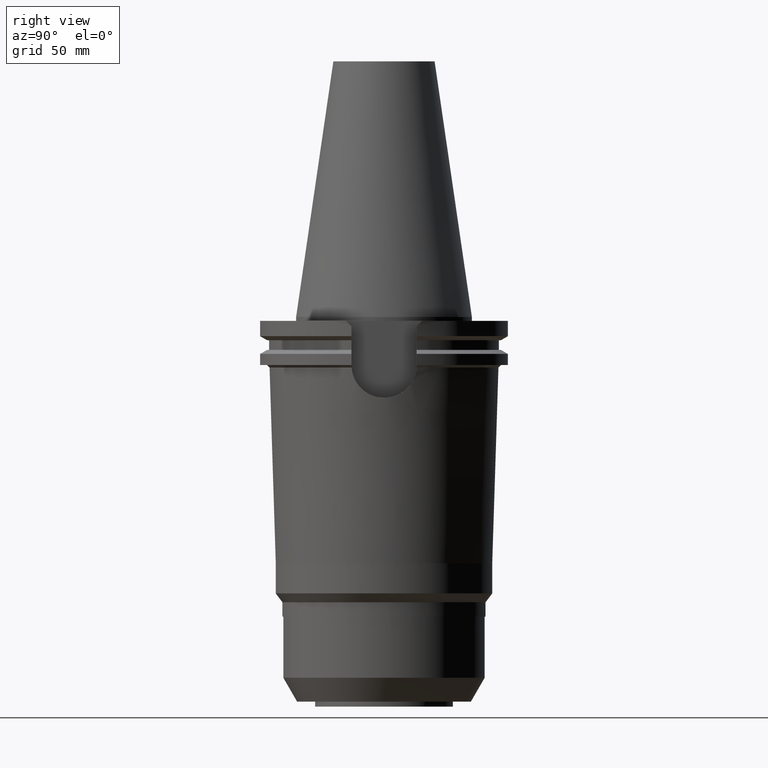
[diagram: clean part render]
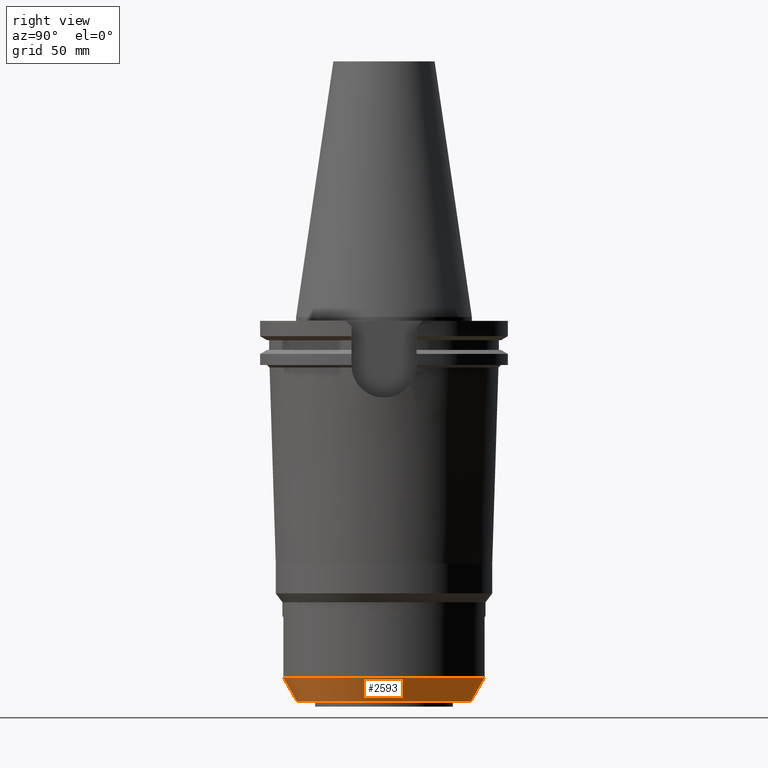
[diagram: same view with one face highlighted and labeled with its STEP entity id]
A machine part, right view. The second image highlights one B-rep face of the part: STEP entity #2593.
In plain terms, the highlighted conical surface has half-angle 30 deg.
Its self-contained STEP definition (entity closure, byte-faithful):
#1198=DIRECTION('',(0.E0,-5.E-1,-8.660254037845E-1));
#1199=VECTOR('',#1198,1.096965511460E1);
#1200=CARTESIAN_POINT('',(0.E0,4.E1,-1.433E2));
#1201=LINE('',#1200,#1199);
#1205=CARTESIAN_POINT('',(0.E0,0.E0,-1.433E2));
#1206=DIRECTION('',(0.E0,0.E0,1.E0));
#1207=DIRECTION('',(0.E0,-1.E0,0.E0));
#1208=AXIS2_PLACEMENT_3D('',#1205,#1206,#1207);
#1221=DIRECTION('',(0.E0,5.E-1,-8.660254037845E-1));
#1222=VECTOR('',#1221,1.096965511460E1);
#1223=CARTESIAN_POINT('',(0.E0,-4.E1,-1.433E2));
#1224=LINE('',#1223,#1222);
#1228=CARTESIAN_POINT('',(0.E0,0.E0,-1.528E2));
#1229=DIRECTION('',(0.E0,0.E0,1.E0));
#1230=DIRECTION('',(0.E0,-1.E0,0.E0));
#1231=AXIS2_PLACEMENT_3D('',#1228,#1229,#1230);
#1536=CARTESIAN_POINT('',(0.E0,-3.451517244270E1,-1.528E2));
#1537=CARTESIAN_POINT('',(0.E0,3.451517244270E1,-1.528E2));
#1538=VERTEX_POINT('',#1536);
#1539=VERTEX_POINT('',#1537);
#1540=CARTESIAN_POINT('',(0.E0,4.E1,-1.433E2));
#1541=VERTEX_POINT('',#1540);
#1542=CARTESIAN_POINT('',(0.E0,-4.E1,-1.433E2));
#1543=VERTEX_POINT('',#1542);
#2579=CARTESIAN_POINT('',(0.E0,0.E0,-1.4805E2));
#2580=DIRECTION('',(0.E0,0.E0,1.E0));
#2581=DIRECTION('',(0.E0,1.E0,0.E0));
#2582=AXIS2_PLACEMENT_3D('',#2579,#2580,#2581);
#2583=CONICAL_SURFACE('',#2582,3.725758622135E1,3.E1);
#2585=ORIENTED_EDGE('',*,*,#2584,.T.);
#2587=ORIENTED_EDGE('',*,*,#2586,.F.);
#2589=ORIENTED_EDGE('',*,*,#2588,.F.);
#2590=ORIENTED_EDGE('',*,*,#2572,.T.);
#2591=EDGE_LOOP('',(#2585,#2587,#2589,#2590));
#2592=FACE_OUTER_BOUND('',#2591,.F.);
#1209=CIRCLE('',#1208,4.E1);
#1232=CIRCLE('',#1231,3.451517244270E1);
#2572=EDGE_CURVE('',#1543,#1541,#1209,.T.);
#2584=EDGE_CURVE('',#1541,#1539,#1201,.T.);
#2586=EDGE_CURVE('',#1538,#1539,#1232,.T.);
#2588=EDGE_CURVE('',#1543,#1538,#1224,.T.);
#2593=ADVANCED_FACE('',(#2592),#2583,.T.);